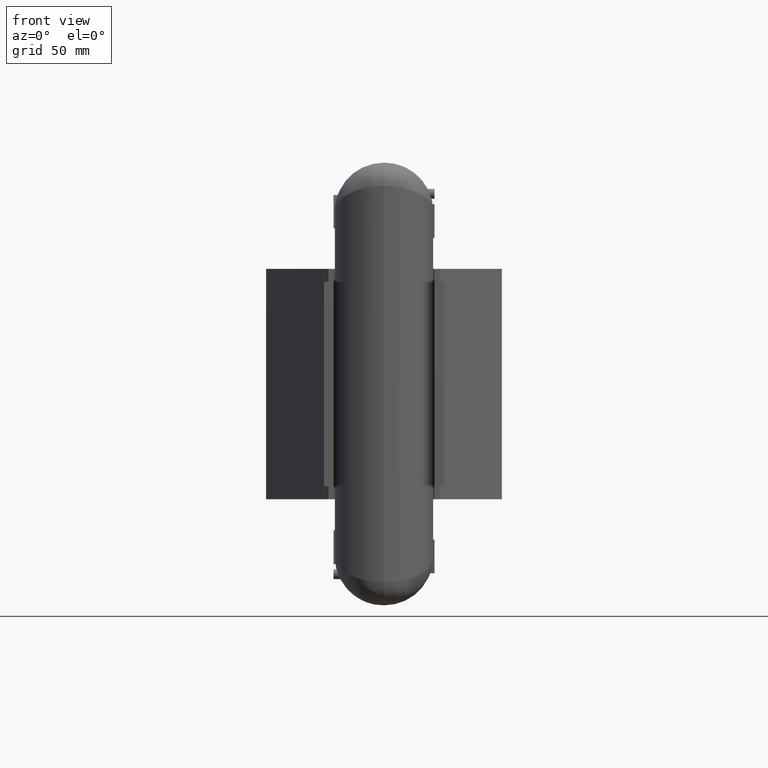
[diagram: clean part render]
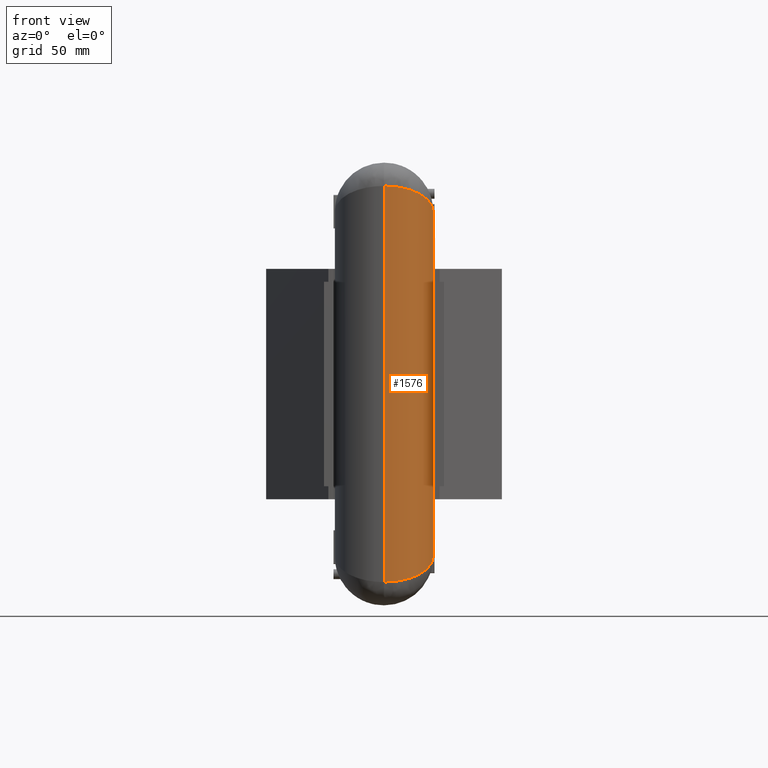
[diagram: same view with one face highlighted and labeled with its STEP entity id]
A machine part, front view. The second image highlights one B-rep face of the part: STEP entity #1576.
In plain terms, the highlighted cylindrical surface (partial cylindrical patch) has radius 18.9 mm, axis along (-0, 0, 1).
Its self-contained STEP definition (entity closure, byte-faithful):
#309=ELLIPSE('',#9377,21.3358852640335,18.9);
#310=ELLIPSE('',#9379,21.3358852640335,18.9);
#1576=ADVANCED_FACE('',(#2092),#1811,.T.);
#1811=CYLINDRICAL_SURFACE('',#9380,18.9);
#2092=FACE_OUTER_BOUND('',#2574,.T.);
#2574=EDGE_LOOP('',(#4572,#4573,#4574,#4575));
#4572=ORIENTED_EDGE('',*,*,#7339,.T.);
#4573=ORIENTED_EDGE('',*,*,#6447,.F.);
#4574=ORIENTED_EDGE('',*,*,#7340,.F.);
#4575=ORIENTED_EDGE('',*,*,#7090,.F.);
#5555=VERTEX_POINT('',#11351);
#5556=VERTEX_POINT('',#11353);
#5982=VERTEX_POINT('',#14945);
#5983=VERTEX_POINT('',#14947);
#6447=EDGE_CURVE('',#5555,#5556,#7755,.T.);
#7090=EDGE_CURVE('',#5982,#5983,#8027,.T.);
#7339=EDGE_CURVE('',#5982,#5556,#309,.T.);
#7340=EDGE_CURVE('',#5983,#5555,#310,.T.);
#7755=LINE('',#11352,#8333);
#8027=LINE('',#14946,#8683);
#8333=VECTOR('',#9622,1.);
#8683=VECTOR('',#10450,1.);
#9377=AXIS2_PLACEMENT_3D('',#16353,#10729,#10730);
#9379=AXIS2_PLACEMENT_3D('',#16397,#10733,#10734);
#9380=AXIS2_PLACEMENT_3D('',#16398,#10735,#10736);
#9622=DIRECTION('',(-2.34291072916505E-15,0.,1.));
#10450=DIRECTION('',(2.34291072916505E-15,0.,-1.));
#10729=DIRECTION('',(2.07542420824062E-15,-0.464006994670557,-0.885831535280155));
#10730=DIRECTION('',(-1.08712696622128E-15,-0.885831535280155,0.464006994670558));
#10733=DIRECTION('',(2.07542420824062E-15,0.464006994670557,-0.885831535280155));
#10734=DIRECTION('',(1.08712696622128E-15,-0.885831535280155,-0.464006994670557));
#10735=DIRECTION('',(-2.34291072916505E-15,0.,1.));
#10736=DIRECTION('',(1.,0.,2.20282346155785E-15));
#11351=CARTESIAN_POINT('',(0.100000000000179,3.,-76.5));
#11352=CARTESIAN_POINT('',(0.0999999999998202,3.,76.5));
#11353=CARTESIAN_POINT('',(0.0999999999998202,3.,76.5));
#14945=CARTESIAN_POINT('',(18.9999999999998,21.9,66.6000000000001));
#14946=CARTESIAN_POINT('',(19.0000000000002,21.9,-76.5));
#14947=CARTESIAN_POINT('',(19.0000000000002,21.9,-66.6));
#16353=CARTESIAN_POINT('',(0.0999999999998434,21.9,66.6));
#16397=CARTESIAN_POINT('',(0.100000000000155,21.9,-66.6));
#16398=CARTESIAN_POINT('',(0.100000000000179,21.9,-76.5));